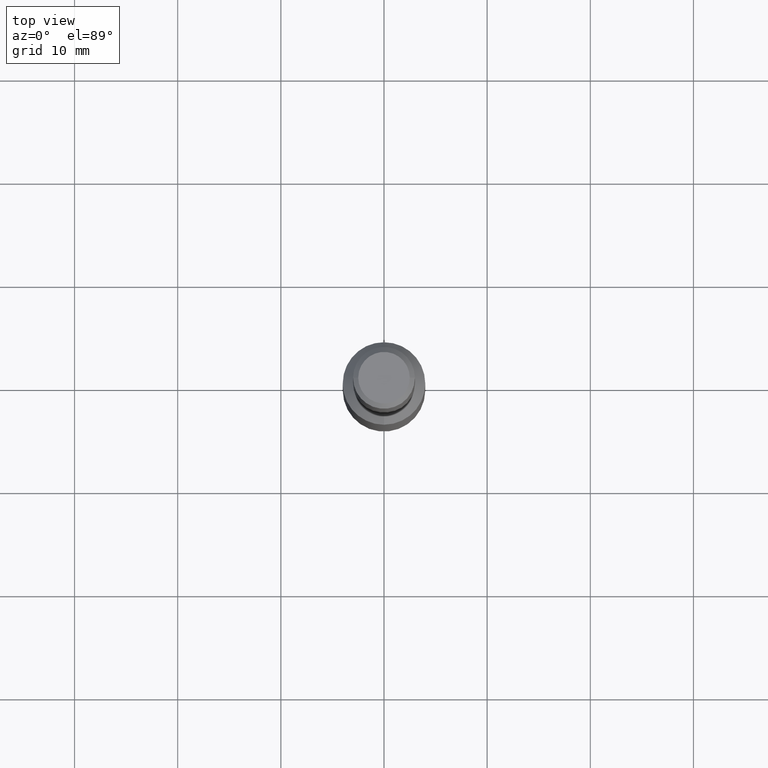
[diagram: clean part render]
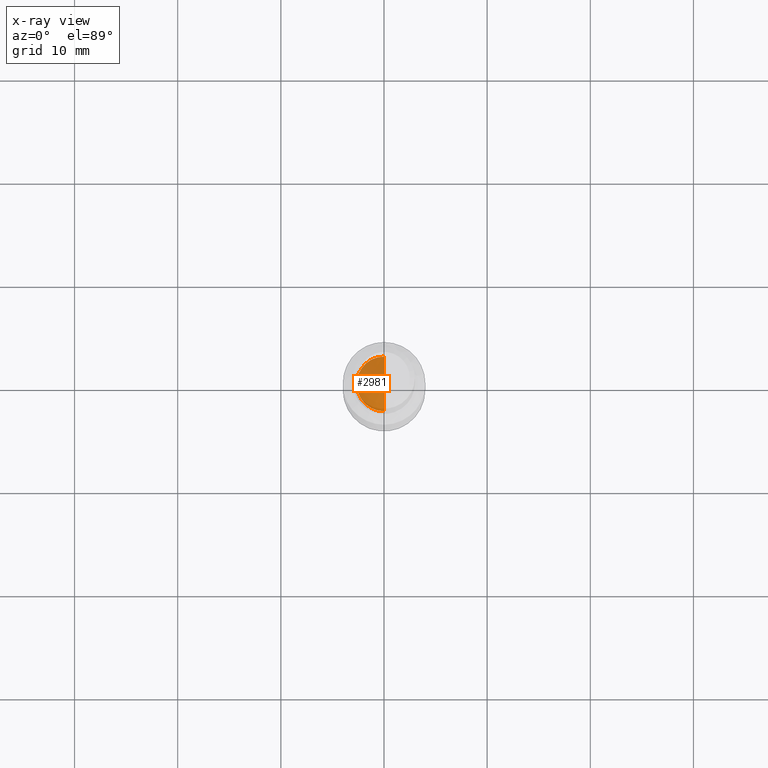
[diagram: x-ray — body ghosted, one internal face saturated and labeled with its STEP entity id]
A machine part, top view, then the same camera in x-ray: the body is ghosted and one INTERNAL B-rep face — a face not visible from any outside direction — is saturated and labeled: STEP entity #2981.
In plain terms, the highlighted conical surface has half-angle 59 deg.
Its self-contained STEP definition (entity closure, byte-faithful):
#64 = ORIENTED_EDGE ( 'NONE', *, *, #4809, .F. ) ;
#366 = ORIENTED_EDGE ( 'NONE', *, *, #3369, .T. ) ;
#406 = DIRECTION ( 'NONE',  ( 0.0000000000000000000, 5.363768819485501700E-020, -1.000000000000000000 ) ) ;
#615 = DIRECTION ( 'NONE',  ( 0.0000000000000000000, -1.000000000000000000, 0.0000000000000000000 ) ) ;
#650 = CARTESIAN_POINT ( 'NONE',  ( 0.0000000000000000000, -1.962725339329641300E-018, 36.59228064042305600 ) ) ;
#725 = DIRECTION ( 'NONE',  ( 0.0000000000000000000, 0.8571673007021098900, -0.5150380749100581500 ) ) ;
#977 = CIRCLE ( 'NONE', #1679, 2.649999999999995500 ) ;
#994 = VECTOR ( 'NONE', #11481, 1000.000000000000000 ) ;
#1470 = LINE ( 'NONE', #10501, #994 ) ;
#1679 = AXIS2_PLACEMENT_3D ( 'NONE', #11764, #11676, #615 ) ;
#1774 = LINE ( 'NONE', #11829, #9682 ) ;
#2597 = EDGE_CURVE ( 'NONE', #7766, #5061, #977, .T. ) ;
#2981 = ADVANCED_FACE ( 'NONE', ( #10508 ), #8071, .F. ) ;
#3369 = EDGE_CURVE ( 'NONE', #3663, #5061, #1470, .T. ) ;
#3663 = VERTEX_POINT ( 'NONE', #650 ) ;
#3678 = DIRECTION ( 'NONE',  ( 0.0000000000000000000, 1.000000000000000000, 0.0000000000000000000 ) ) ;
#4353 = CARTESIAN_POINT ( 'NONE',  ( 0.0000000000000000000, -2.649999999999995500, 35.00000000000000000 ) ) ;
#4473 = CARTESIAN_POINT ( 'NONE',  ( 3.245314017740482000E-016, 2.649999999999995500, 35.00000000000000000 ) ) ;
#4809 = EDGE_CURVE ( 'NONE', #3663, #7766, #1774, .T. ) ;
#5061 = VERTEX_POINT ( 'NONE', #4353 ) ;
#7607 = ORIENTED_EDGE ( 'NONE', *, *, #2597, .F. ) ;
#7766 = VERTEX_POINT ( 'NONE', #4473 ) ;
#8071 = CONICAL_SURFACE ( 'NONE', #11757, 2.649999999999995500, 1.029744258676649900 ) ;
#9682 = VECTOR ( 'NONE', #725, 1000.000000000000000 ) ;
#10501 = CARTESIAN_POINT ( 'NONE',  ( 3.245314017740480500E-016, -2.649999999999995500, 35.00000000000000000 ) ) ;
#10508 = FACE_OUTER_BOUND ( 'NONE', #11505, .T. ) ;
#11481 = DIRECTION ( 'NONE',  ( 1.049727191138615700E-016, -0.8571673007021098900, -0.5150380749100581500 ) ) ;
#11505 = EDGE_LOOP ( 'NONE', ( #64, #366, #7607 ) ) ;
#11676 = DIRECTION ( 'NONE',  ( -0.0000000000000000000, -5.363768819485501700E-020, 1.000000000000000000 ) ) ;
#11757 = AXIS2_PLACEMENT_3D ( 'NONE', #12523, #406, #3678 ) ;
#11764 = CARTESIAN_POINT ( 'NONE',  ( 0.0000000000000000000, -1.877319086819925800E-018, 35.00000000000000000 ) ) ;
#11829 = CARTESIAN_POINT ( 'NONE',  ( 0.0000000000000000000, 2.649999999999995500, 35.00000000000000000 ) ) ;
#12523 = CARTESIAN_POINT ( 'NONE',  ( 0.0000000000000000000, -1.877319086819925800E-018, 35.00000000000000000 ) ) ;